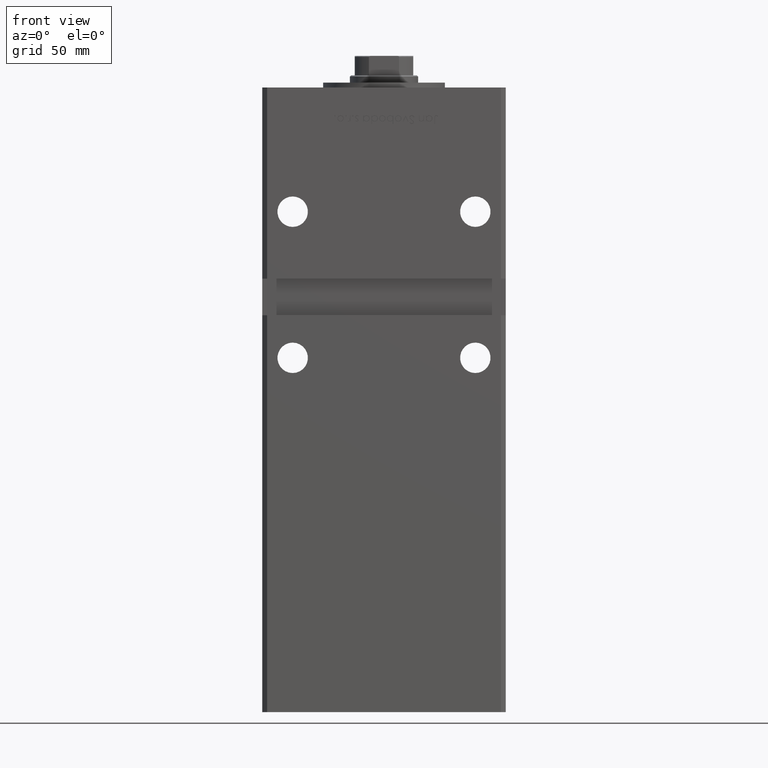
[diagram: clean part render]
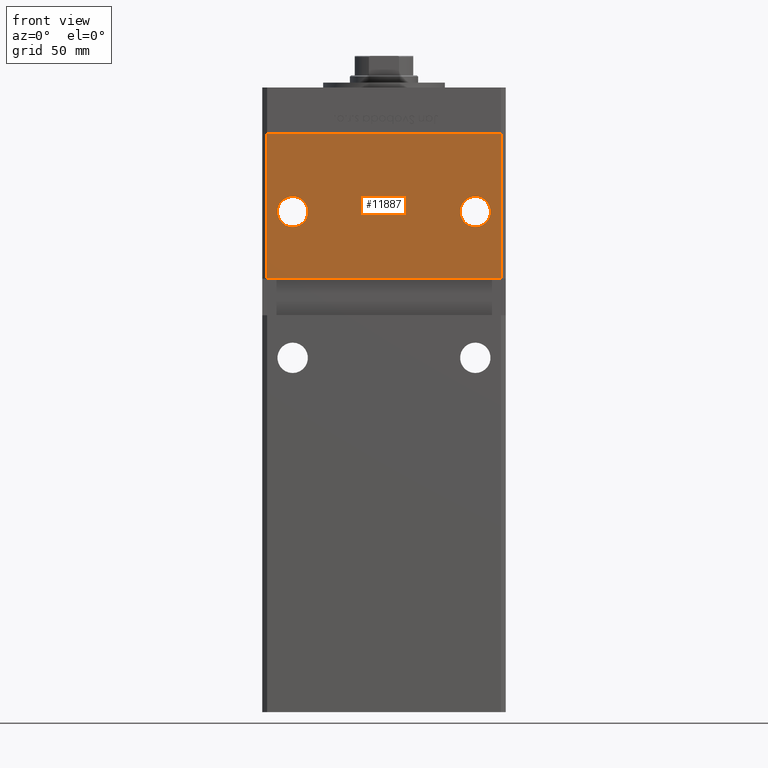
[diagram: same view with one face highlighted and labeled with its STEP entity id]
A machine part, front view. The second image highlights one B-rep face of the part: STEP entity #11887.
In plain terms, the highlighted planar face has unit normal (0, 1, 0).
Its self-contained STEP definition (entity closure, byte-faithful):
#178 = FACE_OUTER_BOUND ( 'NONE', #30851, .T. ) ;
#953 = ORIENTED_EDGE ( 'NONE', *, *, #8659, .F. ) ;
#1627 = EDGE_CURVE ( 'NONE', #23554, #39371, #11152, .T. ) ;
#1782 = VERTEX_POINT ( 'NONE', #50422 ) ;
#2206 = CARTESIAN_POINT ( 'NONE',  ( -37.50000000000000000, -43.50000000000000000, 180.2500000000000000 ) ) ;
#2208 = LINE ( 'NONE', #22901, #23433 ) ;
#2508 = DIRECTION ( 'NONE',  ( 0.000000000000000000, 1.000000000000000000, 0.000000000000000000 ) ) ;
#2770 = VERTEX_POINT ( 'NONE', #20671 ) ;
#3011 = EDGE_CURVE ( 'NONE', #39371, #23554, #36094, .T. ) ;
#3563 = ORIENTED_EDGE ( 'NONE', *, *, #41199, .T. ) ;
#3923 = CARTESIAN_POINT ( 'NONE',  ( -47.99999999999998579, -43.50000000000000000, 218.5000000000000000 ) ) ;
#6644 = CARTESIAN_POINT ( 'NONE',  ( -37.50000000000000000, -43.50000000000000000, 192.7500000000000000 ) ) ;
#7946 = CARTESIAN_POINT ( 'NONE',  ( -47.99999999999998579, -43.50000000000000000, 218.5000000000000000 ) ) ;
#8301 = EDGE_LOOP ( 'NONE', ( #51033, #3563 ) ) ;
#8659 = EDGE_CURVE ( 'NONE', #21228, #48913, #43638, .T. ) ;
#9410 = CARTESIAN_POINT ( 'NONE',  ( 47.99999999999998579, -43.50000000000000000, 218.5000000000000000 ) ) ;
#10576 = CARTESIAN_POINT ( 'NONE',  ( 47.99999999999998579, -43.50000000000000000, 218.5000000000000000 ) ) ;
#10722 = DIRECTION ( 'NONE',  ( 0.000000000000000000, 1.000000000000000000, 0.000000000000000000 ) ) ;
#10744 = ORIENTED_EDGE ( 'NONE', *, *, #13528, .T. ) ;
#11152 = CIRCLE ( 'NONE', #24911, 6.250000000000005329 ) ;
#11887 = ADVANCED_FACE ( 'NONE', ( #31154, #52869, #178 ), #32688, .F. ) ;
#11995 = CARTESIAN_POINT ( 'NONE',  ( -37.50000000000000000, -43.50000000000000000, 186.5000000000000000 ) ) ;
#13066 = VERTEX_POINT ( 'NONE', #3923 ) ;
#13367 = CARTESIAN_POINT ( 'NONE',  ( 47.99999999999998579, -43.50000000000000000, 159.0000000000000000 ) ) ;
#13528 = EDGE_CURVE ( 'NONE', #13066, #17299, #2208, .T. ) ;
#14608 = DIRECTION ( 'NONE',  ( 0.000000000000000000, 0.000000000000000000, 1.000000000000000000 ) ) ;
#14955 = DIRECTION ( 'NONE',  ( 0.000000000000000000, 1.000000000000000000, 0.000000000000000000 ) ) ;
#16037 = DIRECTION ( 'NONE',  ( 0.000000000000000000, -0.000000000000000000, 1.000000000000000000 ) ) ;
#16322 = LINE ( 'NONE', #52630, #38426 ) ;
#17299 = VERTEX_POINT ( 'NONE', #45958 ) ;
#17440 = ORIENTED_EDGE ( 'NONE', *, *, #39950, .F. ) ;
#18119 = CARTESIAN_POINT ( 'NONE',  ( 37.50000000000000000, -43.50000000000000000, 186.5000000000000000 ) ) ;
#18604 = DIRECTION ( 'NONE',  ( -0.000000000000000000, -0.000000000000000000, -1.000000000000000000 ) ) ;
#18951 = AXIS2_PLACEMENT_3D ( 'NONE', #11995, #44805, #32694 ) ;
#20422 = CIRCLE ( 'NONE', #23835, 6.250000000000005329 ) ;
#20671 = CARTESIAN_POINT ( 'NONE',  ( 37.50000000000000000, -43.50000000000000000, 180.2500000000000000 ) ) ;
#21228 = VERTEX_POINT ( 'NONE', #9410 ) ;
#22120 = DIRECTION ( 'NONE',  ( -1.000000000000000000, -0.000000000000000000, -0.000000000000000000 ) ) ;
#22814 = VECTOR ( 'NONE', #22120, 1000.000000000000000 ) ;
#22901 = CARTESIAN_POINT ( 'NONE',  ( -47.99999999999998579, -43.50000000000000000, 218.5000000000000000 ) ) ;
#23433 = VECTOR ( 'NONE', #18604, 1000.000000000000000 ) ;
#23554 = VERTEX_POINT ( 'NONE', #6644 ) ;
#23835 = AXIS2_PLACEMENT_3D ( 'NONE', #18119, #29691, #25921 ) ;
#24911 = AXIS2_PLACEMENT_3D ( 'NONE', #51802, #14955, #34861 ) ;
#25887 = LINE ( 'NONE', #42285, #22814 ) ;
#25921 = DIRECTION ( 'NONE',  ( 0.000000000000000000, 0.000000000000000000, 1.000000000000000000 ) ) ;
#26972 = CARTESIAN_POINT ( 'NONE',  ( 37.50000000000000000, -43.50000000000000000, 186.5000000000000000 ) ) ;
#28410 = ORIENTED_EDGE ( 'NONE', *, *, #1627, .T. ) ;
#29691 = DIRECTION ( 'NONE',  ( 0.000000000000000000, 1.000000000000000000, 0.000000000000000000 ) ) ;
#30055 = EDGE_CURVE ( 'NONE', #48913, #17299, #25887, .T. ) ;
#30271 = ORIENTED_EDGE ( 'NONE', *, *, #30055, .F. ) ;
#30851 = EDGE_LOOP ( 'NONE', ( #10744, #30271, #953, #17440 ) ) ;
#31154 = FACE_BOUND ( 'NONE', #8301, .T. ) ;
#32064 = DIRECTION ( 'NONE',  ( -0.000000000000000000, -0.000000000000000000, -1.000000000000000000 ) ) ;
#32688 = PLANE ( 'NONE',  #48271 ) ;
#32694 = DIRECTION ( 'NONE',  ( 0.000000000000000000, 0.000000000000000000, 1.000000000000000000 ) ) ;
#34414 = VECTOR ( 'NONE', #32064, 1000.000000000000000 ) ;
#34861 = DIRECTION ( 'NONE',  ( 0.000000000000000000, 0.000000000000000000, 1.000000000000000000 ) ) ;
#36094 = CIRCLE ( 'NONE', #18951, 6.250000000000005329 ) ;
#37264 = EDGE_CURVE ( 'NONE', #1782, #2770, #41032, .T. ) ;
#38426 = VECTOR ( 'NONE', #41038, 1000.000000000000000 ) ;
#39371 = VERTEX_POINT ( 'NONE', #2206 ) ;
#39950 = EDGE_CURVE ( 'NONE', #13066, #21228, #16322, .T. ) ;
#40906 = AXIS2_PLACEMENT_3D ( 'NONE', #26972, #2508, #14608 ) ;
#41032 = CIRCLE ( 'NONE', #40906, 6.250000000000005329 ) ;
#41038 = DIRECTION ( 'NONE',  ( 1.000000000000000000, 0.000000000000000000, 0.000000000000000000 ) ) ;
#41199 = EDGE_CURVE ( 'NONE', #2770, #1782, #20422, .T. ) ;
#42285 = CARTESIAN_POINT ( 'NONE',  ( -49.99999999999998579, -43.50000000000000000, 159.0000000000000000 ) ) ;
#42999 = EDGE_LOOP ( 'NONE', ( #28410, #50867 ) ) ;
#43638 = LINE ( 'NONE', #10576, #34414 ) ;
#44805 = DIRECTION ( 'NONE',  ( 0.000000000000000000, 1.000000000000000000, 0.000000000000000000 ) ) ;
#45958 = CARTESIAN_POINT ( 'NONE',  ( -47.99999999999998579, -43.50000000000000000, 159.0000000000000000 ) ) ;
#48271 = AXIS2_PLACEMENT_3D ( 'NONE', #7946, #10722, #16037 ) ;
#48913 = VERTEX_POINT ( 'NONE', #13367 ) ;
#50422 = CARTESIAN_POINT ( 'NONE',  ( 37.50000000000000000, -43.50000000000000000, 192.7500000000000000 ) ) ;
#50867 = ORIENTED_EDGE ( 'NONE', *, *, #3011, .T. ) ;
#51033 = ORIENTED_EDGE ( 'NONE', *, *, #37264, .T. ) ;
#51802 = CARTESIAN_POINT ( 'NONE',  ( -37.50000000000000000, -43.50000000000000000, 186.5000000000000000 ) ) ;
#52630 = CARTESIAN_POINT ( 'NONE',  ( -47.99999999999998579, -43.50000000000000000, 218.5000000000000000 ) ) ;
#52869 = FACE_BOUND ( 'NONE', #42999, .T. ) ;